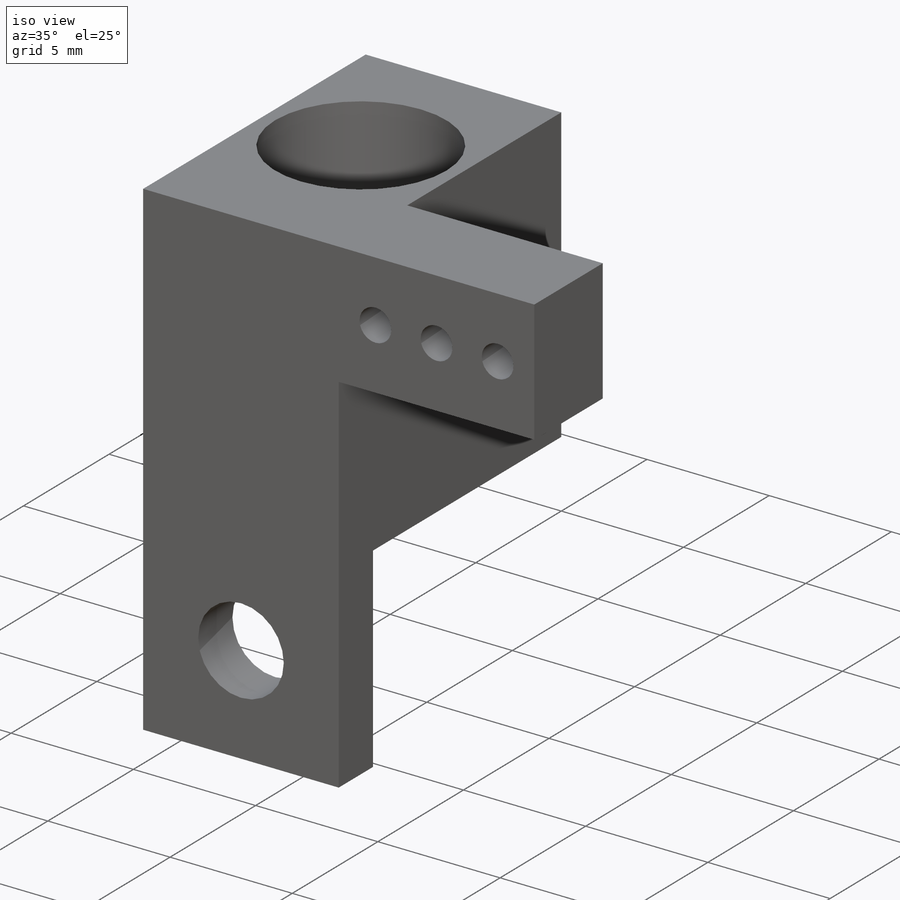
[diagram: iso view]
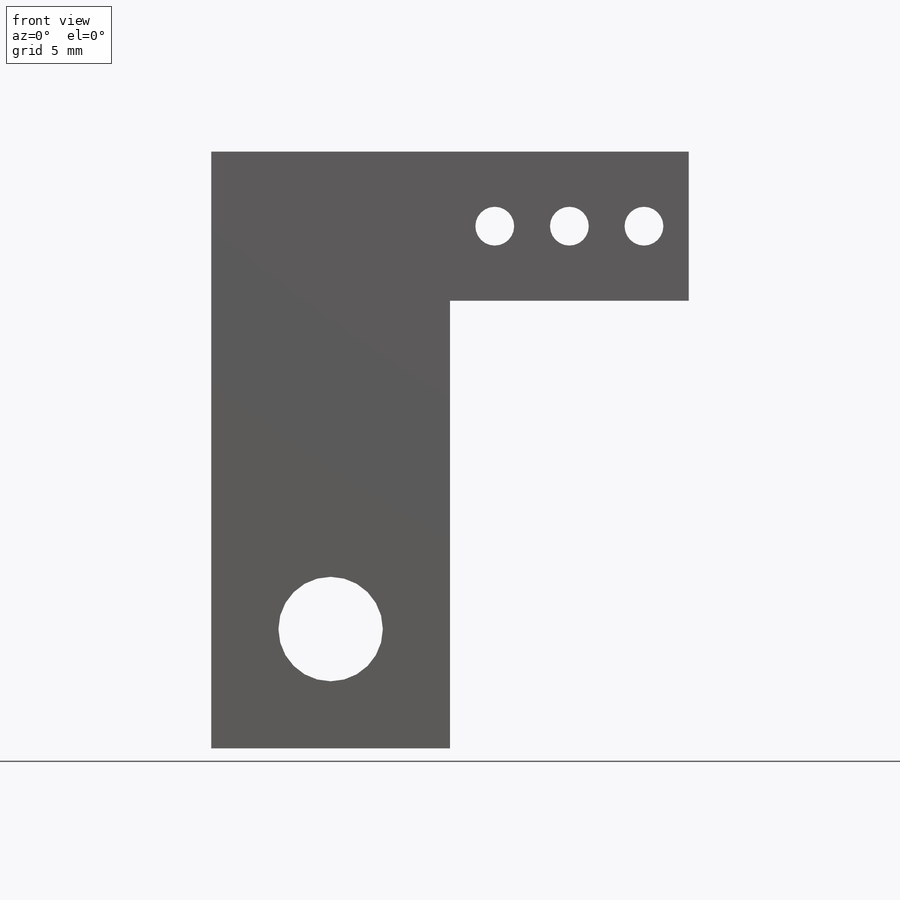
[diagram: front view]
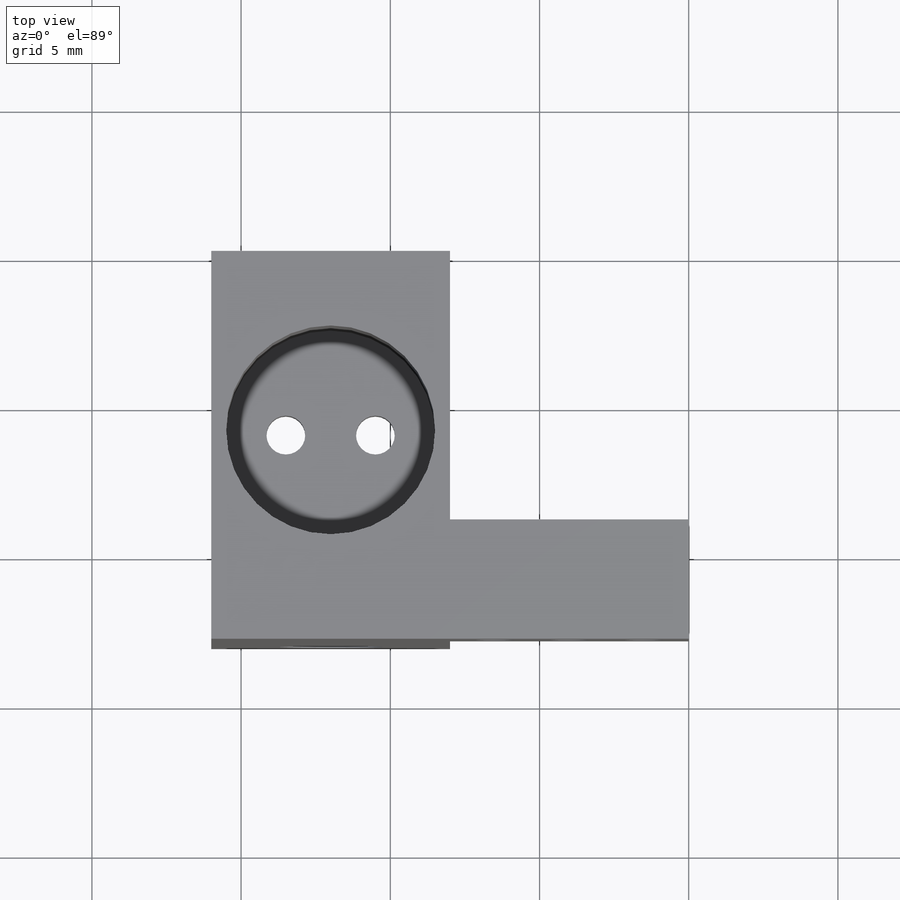
[diagram: top view]
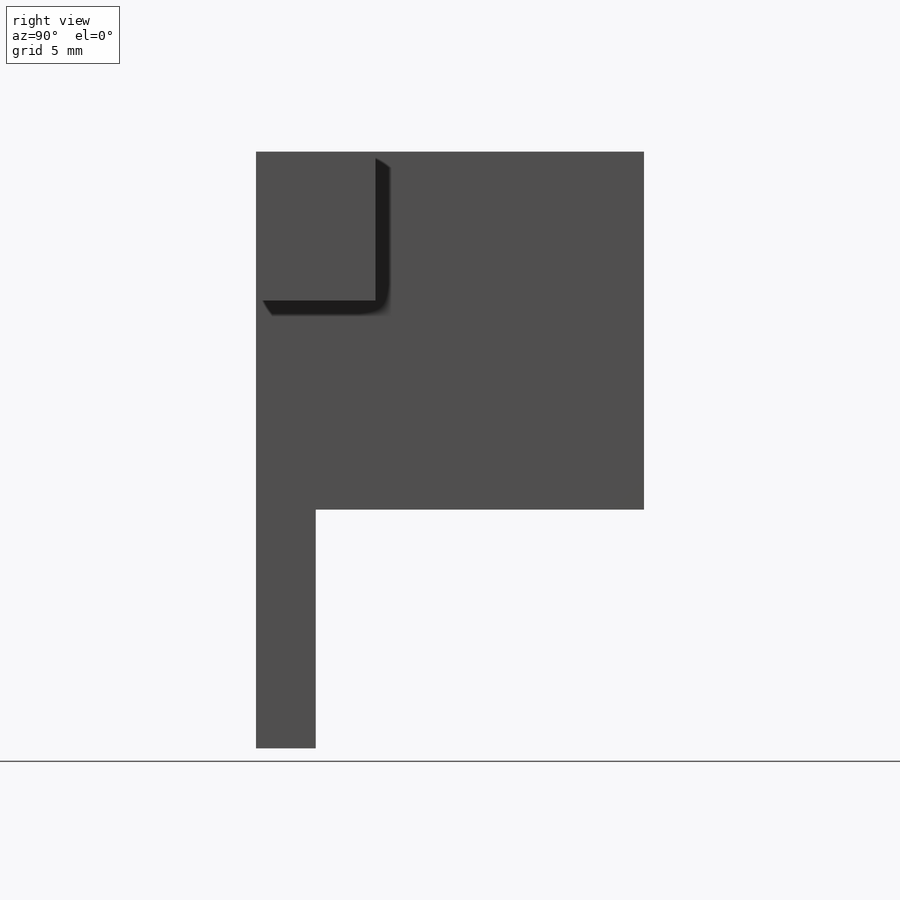
[diagram: right view]
SOLIDWORKS PART (.sldprt)
format: sldprt  version: not decoded by parser v0  size: 357,376 bytes
history: native  units: mm
features: sketch x16, extrude x9, cut_extrude x6, material x1 (+13 scaffold rows collapsed)
feature tree (45):
  scaffold x13  (default folders/planes/origin — collapsed)
  material  "Material <not specified>"
  sketch  "Sketch1"  dims[c1.D1=8.0mm c1.D2=8.0mm c1.D3=1.0mm c1.D4=8.0mm c1.D5=0.0mm c1.D6=~2.293706mm c2.D5=0.0mm c2.D6=0.0mm]
  extrude  "Boss-Extrude1"  Depth=2mm
  sketch  "Sketch2"
  extrude  "Boss-Extrude2"  Depth=2mm
  sketch  "Sketch3"
  extrude  "Boss-Extrude3"  Depth=8mm
  sketch  "Sketch4"  dims[c1.D1=~2.624283mm c1.D2=~2.624283mm c1.D3=7.0mm c2.D1=4.0mm c2.D2=4.0mm]
  cut_extrude  "Cut-Extrude1"  Depth=10mm
  sketch  "Sketch5"  dims[c1.D1=1.3mm c1.D2=1.3mm c1.D4=1.3mm c1.D5=1.3mm c1.D3=3.0mm c2.D4=4.0mm c2.D5=2.5mm]
  cut_extrude  "Cut-Extrude2"  [1 undecoded]
  sketch  "Sketch6"  dims[c1.D1=1.3mm c1.D2=1.3mm c1.D3=1.3mm c1.D4=1.3mm c1.D5=3.4422mm c1.D6=1.3mm c1.D7=1.3mm c2.D2=1.0mm c2.D3=6.5mm c2.D4=2.5mm c2.D5=1.5mm]
  cut_extrude  "Cut-Extrude3"  [1 undecoded]
  sketch  "Sketch10"  dims[D1=1.3mm D2=1.3mm D3=1.3mm]
  extrude  "Boss-Extrude6"  Depth=3mm
  sketch  "Sketch11"  dims[D1=2.0mm]
  extrude  "Boss-Extrude7"  Depth=8mm
  sketch  "Sketch12"  dims[c1.D1=~7.315078mm c1.D2=2.0mm c1.D3=2.0mm c2.D1=4.0mm c2.D3=4.0mm]
  cut_extrude  "Cut-Extrude5"  Depth=8mm
  sketch  "Sketch13"
  extrude  "Boss-Extrude8"  Depth=2mm
  sketch  "Sketch14"
  extrude  "Boss-Extrude9"  Depth=1mm
  sketch  "Sketch15"
  extrude  "Boss-Extrude10"  [1 undecoded]
  sketch  "Sketch18"  dims[D1=1.3mm D2=1.3mm D3=1.3mm]
  extrude  "Boss-Extrude11"  [1 undecoded]
  sketch  "Sketch19"  dims[c1.D1=1.3mm c1.D2=1.3mm c1.D3=1.3mm c1.D4=1.3mm c1.D5=1.3mm c1.D7=1.3mm c2.D4=2.5mm c2.D5=2.5mm c2.D6=1.5mm c2.D7=2.5mm]
  cut_extrude  "Cut-Extrude6"  [1 undecoded]
  sketch  "Sketch20"  dims[D1=3.5mm]
  cut_extrude  "Cut-Extrude7"  [1 undecoded]
  sketch  "Sketch21"  dims[D1=7.0mm]
decode coverage: 20 of 31 modeling features carry decoded parameters
note: ~ marks probable driven/reference dimensions
note: 6 parameter values undecoded
summary: no parameter record found for 6 features
note: suppression state not decoded; provenance and decode notes live in map.json
